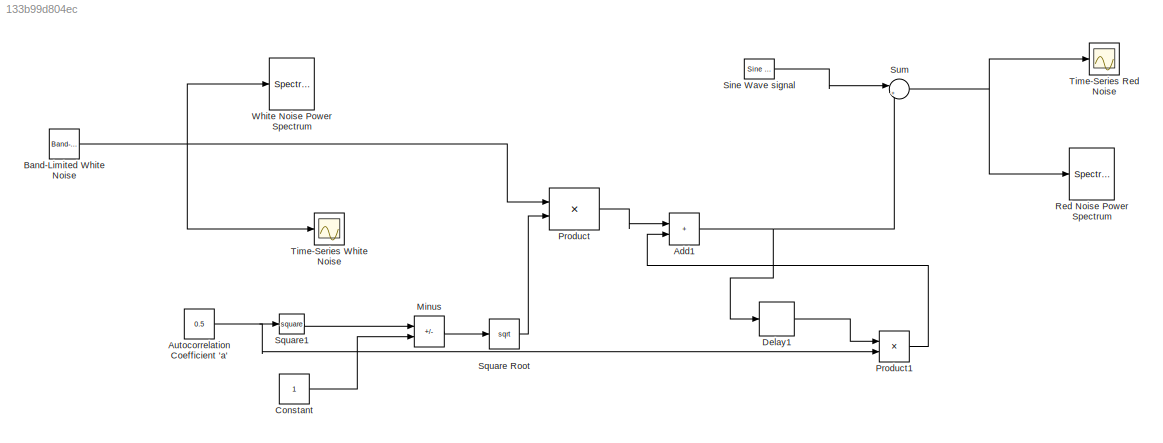
MODEL slx_133b99d804ec
KIND model
CONFIG AbsTol = auto
CONFIG EnableMultiTasking = off
CONFIG FixedStep = auto
CONFIG MaxStep = auto
CONFIG MinStep = auto
CONFIG RelTol = 1e-3
CONFIG SampleTimeConstraint = Unconstrained
CONFIG SolverName = VariableStepAuto
CONFIG StartTime = 0.0
CONFIG StopTime = 1000
BLOCK [Sum] Add1
  IconShape = rectangular
  Inputs = |++
BLOCK [Constant] Autocorrelation Coefficient 'a'
  Value = 0.5
BLOCK [Reference] Band-Limited White Noise  REF=simulink/Sources/Band-Limited
White Noise
  SourceBlock = simulink/Sources/Band-Limited\nWhite Noise
  SourceType = Band-Limited White Noise.
BLOCK [Constant] Constant
BLOCK [Delay] Delay1
  DelayLength = 1
  InputPortMap = u0
BLOCK [Sum] Minus
  IconShape = rectangular
  Inputs = -+
BLOCK [Product] Product
BLOCK [Product] Product1
BLOCK [SpectrumAnalyzer] Red Noise Power Spectrum
  ScopeSpecificationString = spbscopes.SpectrumAnalyzerBlockCfg('CurrentConfiguration', extmgr.ConfigurationSet(extmgr.Configuration('Core','General UI',true),extmgr.Configuration('Core','Source UI',true),extmgr.Configuration('Sources','WiredSimulink',true),extmgr.Configuration('Sources','SimulinkEvent',false),extmgr.Configuration('Sources','Simulink',false),extmgr.Configuration('Sources','File',false),extmgr.Configuration('S...<+3402ch>
BLOCK [Reference] Sine Wave signal  REF=dspsrcs4/Sine Wave
  SourceBlock = dspsrcs4/Sine Wave
  SourceType = Sine Wave
BLOCK [Sqrt] Square Root
BLOCK [Math] Square1
  Operator = square
BLOCK [Sum] Sum
  Inputs = |++
BLOCK [Scope] Time-Series Red Noise
  Floating = off
  NumInputPorts = 1
  ScopeSpecificationString = Simulink.scopes.TimeScopeBlockCfg('CurrentConfiguration', extmgr.ConfigurationSet(extmgr.Configuration('Core','General UI',true),extmgr.Configuration('Core','Source UI',true),extmgr.Configuration('Sources','WiredSimulink',true,'DataLoggingVariableName','ScopeData4'),extmgr.Configuration('Visuals','Time Domain',true,'SerializedDisplays',{struct('MinYLimReal','-5.07526','MaxYLimReal','5.26499','YLab...<+1431ch>
BLOCK [Scope] Time-Series White Noise
  Floating = off
  NumInputPorts = 1
  ScopeSpecificationString = Simulink.scopes.TimeScopeBlockCfg('CurrentConfiguration', extmgr.ConfigurationSet(extmgr.Configuration('Core','General UI',true),extmgr.Configuration('Core','Source UI',true),extmgr.Configuration('Sources','WiredSimulink',true),extmgr.Configuration('Visuals','Time Domain',true,'SerializedDisplays',{struct('MinYLimReal','-4.64096','MaxYLimReal','4.89776','YLabelReal','','MinYLimMag','0.00000','MaxY...<+1423ch>
BLOCK [SpectrumAnalyzer] White Noise Power Spectrum
  ScopeSpecificationString = spbscopes.SpectrumAnalyzerBlockCfg('CurrentConfiguration', extmgr.ConfigurationSet(extmgr.Configuration('Core','General UI',true),extmgr.Configuration('Core','Source UI',true),extmgr.Configuration('Sources','WiredSimulink',true),extmgr.Configuration('Visuals','Spectrum',true,'AxesProperties',struct('Color',{[0 0 0],[0 0 0]},'XColor',{[0.686274509803922 0.686274509803922 0.686274509803922],[0.68627...<+2229ch>
NET Add1:1 -> Delay1:1, Sum:2
NET Autocorrelation Coefficient 'a':1 -> Product1:2, Square1:1
NET Band-Limited White Noise:1 -> Product:1, Time-Series White Noise:1, White Noise Power Spectrum:1
LINE Constant:1 -> Minus:2
LINE Delay1:1 -> Product1:1
LINE Minus:1 -> Square Root:1
LINE Product1:1 -> Add1:2
LINE Product:1 -> Add1:1
LINE Sine Wave signal:1 -> Sum:1
LINE Square Root:1 -> Product:2
LINE Square1:1 -> Minus:1
NET Sum:1 -> Red Noise Power Spectrum:1, Time-Series Red Noise:1
note: NET lines group one-source signal fan-out (src -> all destinations, sorted); 1:1 wires keep LINE
